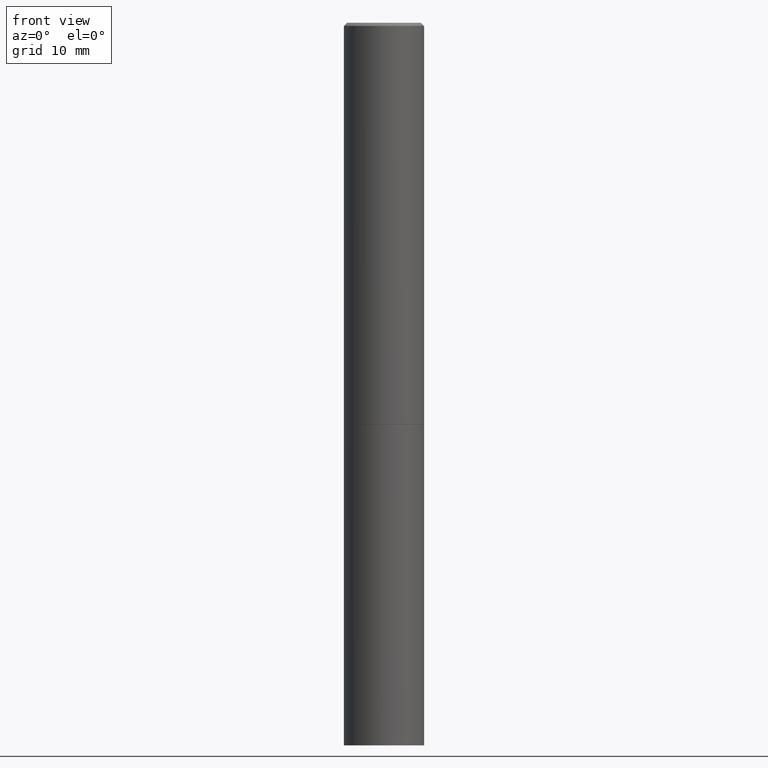
[diagram: clean part render]
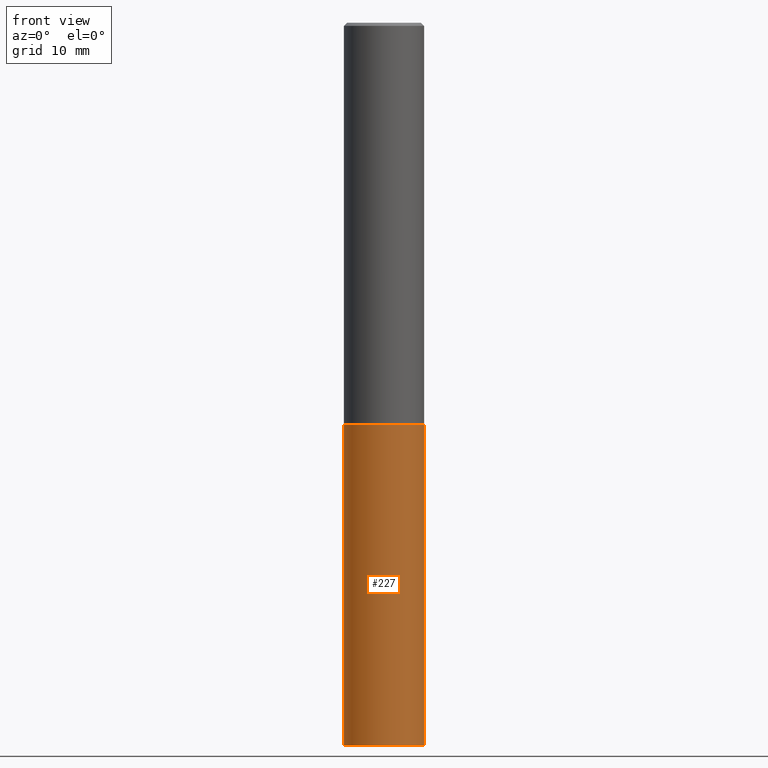
[diagram: same view with one face highlighted and labeled with its STEP entity id]
A machine part, front view. The second image highlights one B-rep face of the part: STEP entity #227.
In plain terms, the highlighted cylindrical surface (partial cylindrical patch) has radius 6.35 mm, axis along (-0, 0, 1).
Its self-contained STEP definition (entity closure, byte-faithful):
#7 = CIRCLE ( 'NONE', #44, 0.2500000000000000000 ) ;
#15 = CARTESIAN_POINT ( 'NONE',  ( 6.113672015462842613E-29, -8.728703347107864943E-15, -2.500000000000000000 ) ) ;
#28 = VERTEX_POINT ( 'NONE', #329 ) ;
#35 = ORIENTED_EDGE ( 'NONE', *, *, #171, .F. ) ;
#42 = EDGE_CURVE ( 'NONE', #28, #273, #7, .T. ) ;
#44 = AXIS2_PLACEMENT_3D ( 'NONE', #15, #130, #83 ) ;
#50 = LINE ( 'NONE', #284, #186 ) ;
#53 = VERTEX_POINT ( 'NONE', #277 ) ;
#75 = EDGE_CURVE ( 'NONE', #53, #273, #50, .T. ) ;
#83 = DIRECTION ( 'NONE',  ( 1.000000000000000000, -6.982962677686266711E-15, 0.000000000000000000 ) ) ;
#84 = DIRECTION ( 'NONE',  ( -2.445468806185136877E-29, 3.491481338843145188E-15, 1.000000000000000000 ) ) ;
#90 = ORIENTED_EDGE ( 'NONE', *, *, #75, .T. ) ;
#99 = AXIS2_PLACEMENT_3D ( 'NONE', #330, #203, #280 ) ;
#110 = DIRECTION ( 'NONE',  ( -2.445468806185136877E-29, 3.491481338843145188E-15, 1.000000000000000000 ) ) ;
#130 = DIRECTION ( 'NONE',  ( -2.445468806185136597E-29, 3.491481338843145583E-15, 1.000000000000000000 ) ) ;
#139 = CARTESIAN_POINT ( 'NONE',  ( 0.000000000000000000, 0.000000000000000000, 0.000000000000000000 ) ) ;
#155 = ORIENTED_EDGE ( 'NONE', *, *, #42, .F. ) ;
#165 = FACE_OUTER_BOUND ( 'NONE', #348, .T. ) ;
#171 = EDGE_CURVE ( 'NONE', #178, #28, #279, .T. ) ;
#178 = VERTEX_POINT ( 'NONE', #291 ) ;
#184 = EDGE_CURVE ( 'NONE', #178, #53, #266, .T. ) ;
#186 = VECTOR ( 'NONE', #110, 39.37007874015748143 ) ;
#203 = DIRECTION ( 'NONE',  ( -2.445468806185136597E-29, 3.491481338843145583E-15, 1.000000000000000000 ) ) ;
#206 = ORIENTED_EDGE ( 'NONE', *, *, #184, .T. ) ;
#218 = CARTESIAN_POINT ( 'NONE',  ( -0.2500000000000000000, 1.776356839400250465E-15, -1.229733772563726445E-29 ) ) ;
#224 = CYLINDRICAL_SURFACE ( 'NONE', #295, 0.2500000000000000000 ) ;
#227 = ADVANCED_FACE ( 'NONE', ( #165 ), #224, .T. ) ;
#252 = CARTESIAN_POINT ( 'NONE',  ( 0.2500000000000000000, -1.047444401652943162E-14, -2.500000000000000000 ) ) ;
#266 = CIRCLE ( 'NONE', #99, 0.2500000000000000000 ) ;
#273 = VERTEX_POINT ( 'NONE', #252 ) ;
#277 = CARTESIAN_POINT ( 'NONE',  ( 0.2500000000000000000, -1.745740669421572357E-14, -4.500000000000000000 ) ) ;
#279 = LINE ( 'NONE', #218, #281 ) ;
#280 = DIRECTION ( 'NONE',  ( 1.000000000000000000, -6.982962677686270655E-15, 0.000000000000000000 ) ) ;
#281 = VECTOR ( 'NONE', #84, 39.37007874015748143 ) ;
#283 = DIRECTION ( 'NONE',  ( 1.000000000000000000, -6.982962677686266711E-15, 4.876176775795935793E-29 ) ) ;
#284 = CARTESIAN_POINT ( 'NONE',  ( 0.2500000000000000000, -1.745740669421566678E-15, 1.219044193948983948E-29 ) ) ;
#291 = CARTESIAN_POINT ( 'NONE',  ( -0.2500000000000000000, -1.044382784655076046E-14, -4.500000000000000000 ) ) ;
#295 = AXIS2_PLACEMENT_3D ( 'NONE', #139, #315, #283 ) ;
#315 = DIRECTION ( 'NONE',  ( -2.445468806185136597E-29, 3.491481338843145583E-15, 1.000000000000000000 ) ) ;
#329 = CARTESIAN_POINT ( 'NONE',  ( -0.2500000000000000000, -1.044382784655076046E-14, -2.500000000000000000 ) ) ;
#330 = CARTESIAN_POINT ( 'NONE',  ( 1.100460962783311469E-28, -1.571166602479415690E-14, -4.500000000000000000 ) ) ;
#348 = EDGE_LOOP ( 'NONE', ( #35, #206, #90, #155 ) ) ;